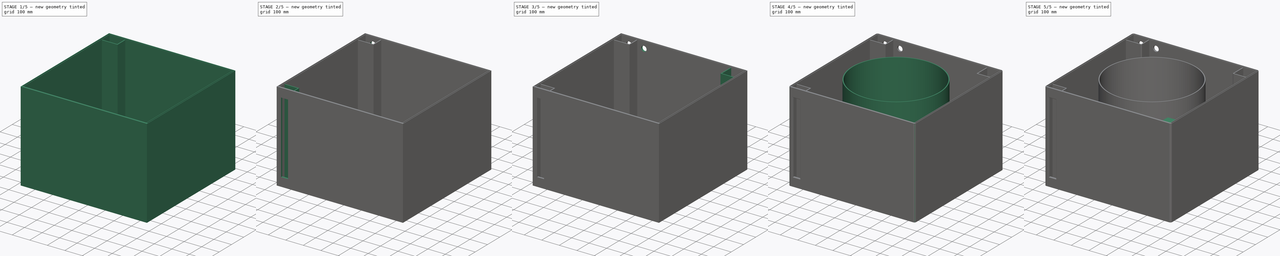
[diagram: build sequence overview — one tinted view per stage of 5, left to right]
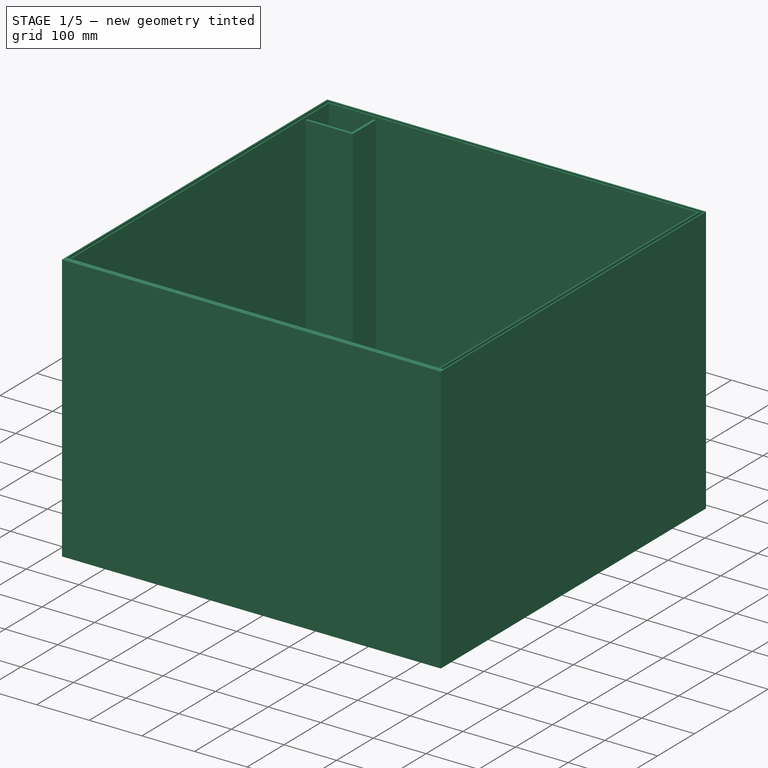
[diagram: stage 1 of 5 — iso view after this stage's code; geometry added in this stage tinted green]
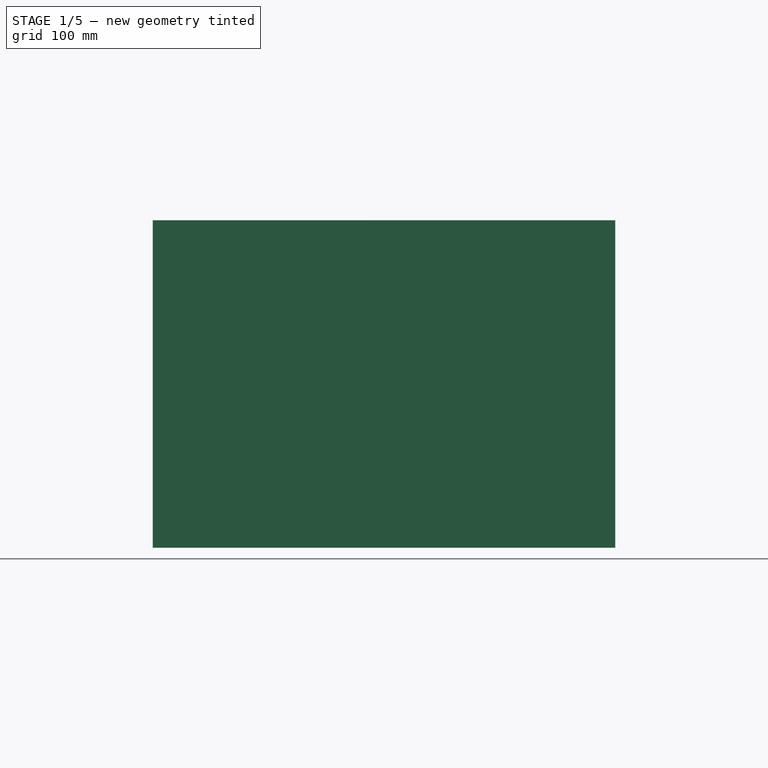
[diagram: stage 1 of 5 — front view after this stage's code; geometry added in this stage tinted green]
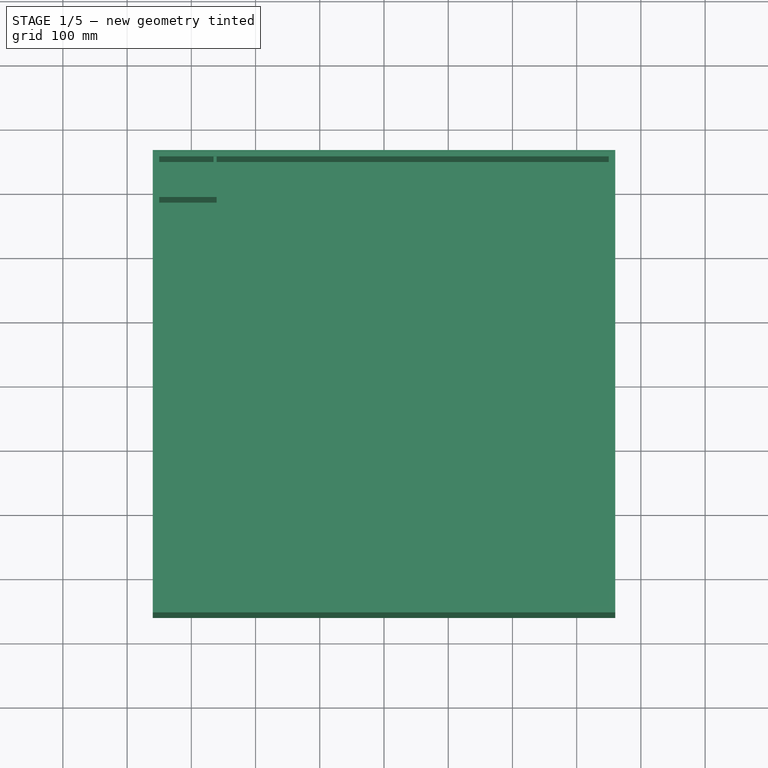
[diagram: stage 1 of 5 — top view after this stage's code; geometry added in this stage tinted green]
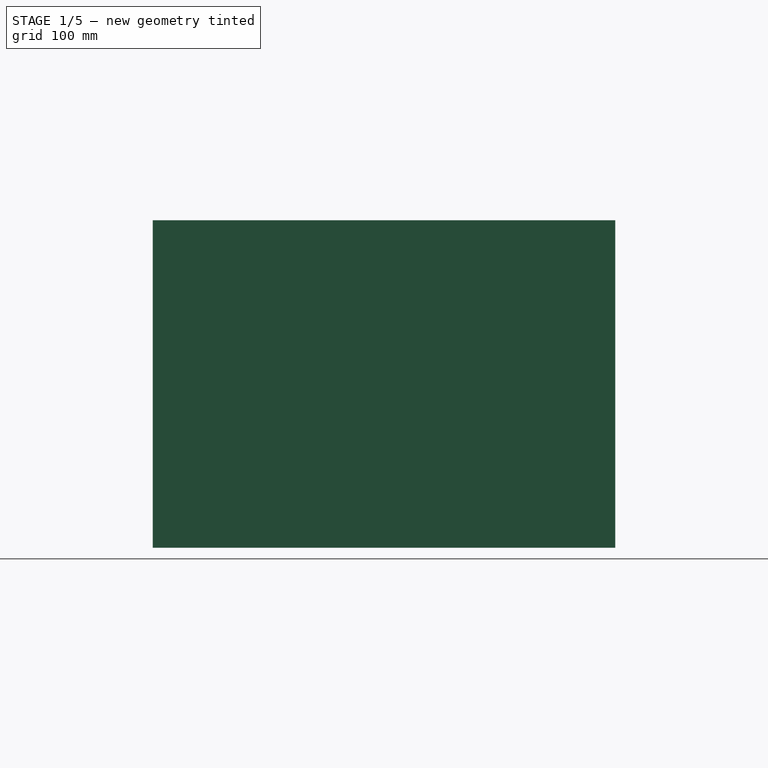
[diagram: stage 1 of 5 — right view after this stage's code; geometry added in this stage tinted green]
FCSTD DOCUMENT  (FreeCAD 0.18R16131 (Git))
Label: Cuve
License: All rights reserved
LicenseURL: http://en.wikipedia.org/wiki/All_rights_reserved
objects: Sketcher::SketchObject×16, PartDesign::Pocket×10, PartDesign::Pad×6, PartDesign::Fillet×6, PartDesign::Body×2, PartDesign::Chamfer×1
note: 57 computed .brp shape members not serialized (recipe doc carries the construction recipe); baked Part::Feature solids carry a one-line shape summary decoded from their .brp

FEATURE [PartDesign::Body] Body
  Origin = -> Origin
FEATURE [Sketcher::SketchObject] Sketch
  MapMode = 5
  Support = -> [XY_Plane001]
  sketch-geometry (6):
    g0: LineSegment StartX=-360 StartY=360 StartZ=0 EndX=360 EndY=360 EndZ=0
    g1: LineSegment StartX=360 StartY=360 StartZ=0 EndX=360 EndY=-360 EndZ=0
    g2: LineSegment StartX=360 StartY=-360 StartZ=0 EndX=-360 EndY=-360 EndZ=0
    g3: LineSegment StartX=-360 StartY=-360 StartZ=0 EndX=-360 EndY=360 EndZ=0
    g4: LineSegment [constr] StartX=-360 StartY=360 StartZ=0 EndX=360 EndY=-360 EndZ=0
    g5: LineSegment [constr] StartX=360 StartY=360 StartZ=0 EndX=-360 EndY=-360 EndZ=0
  constraints (16):
    c: Coincident(g0,g1)
    c: Coincident(g1,g2)
    c: Coincident(g2,g3)
    c: Coincident(g3,g0)
    c: Horizontal(g0)
    c: Horizontal(g2)
    c: Vertical(g1)
    c: Vertical(g3)
    c: DistanceX(g0,g0) = 720
    c: DistanceY(g1,g1) = 720
    c: PointOnObject(g-1,g4)
    c: Coincident(g4,g0)
    c: Coincident(g4,g1)
    c: Coincident(g5,g2)
    c: Coincident(g5,g0)
    c: PointOnObject(g-1,g5)
FEATURE [PartDesign::Pad] Pad  label="Hauteur/largeur_cuve"
  Length = 510
  Length2 = 100
  Profile = -> Sketch
  Type = 0
FEATURE [Sketcher::SketchObject] Sketch001
  ExternalGeometry = -> [Pad]
  MapMode = 5
  Placement = pos=(0,0,510) rot=(0,0,1;0rad)
  Support = -> [Pad]
  sketch-geometry (4):
    g0: LineSegment StartX=-350 StartY=350 StartZ=0 EndX=350 EndY=350 EndZ=0
    g1: LineSegment StartX=350 StartY=350 StartZ=0 EndX=350 EndY=-350 EndZ=0
    g2: LineSegment StartX=350 StartY=-350 StartZ=0 EndX=-350 EndY=-350 EndZ=0
    g3: LineSegment StartX=-350 StartY=-350 StartZ=0 EndX=-350 EndY=350 EndZ=0
  constraints (12):
    c: Coincident(g0,g1)
    c: Coincident(g1,g2)
    c: Coincident(g2,g3)
    c: Coincident(g3,g0)
    c: Horizontal(g0)
    c: Horizontal(g2)
    c: Vertical(g1)
    c: Vertical(g3)
    c: DistanceX(g0,g0) = 700
    c: DistanceY(g1,g1) = 700
    c: DistanceY(g0,g-4) = 10
    c: DistanceX(g-4,g0) = 10
FEATURE [PartDesign::Pocket] Pocket  label="Profondeur_cuve"
  BaseFeature = -> Pad
  Length = 500
  Length2 = 100
  Profile = -> Sketch001
  Type = 0
FEATURE [Sketcher::SketchObject] Sketch002
  ExternalGeometry = -> [Pocket]
  MapMode = 5
  Placement = pos=(0,0,510) rot=(0,0,1;0rad)
  Support = -> [Pocket]
  sketch-geometry (12):
    g0: LineSegment StartX=-358 StartY=358 StartZ=0 EndX=-352 EndY=358 EndZ=0
    g1: LineSegment StartX=-352 StartY=358 StartZ=0 EndX=-352 EndY=-350 EndZ=0
    g2: LineSegment StartX=-352 StartY=-350 StartZ=0 EndX=-358 EndY=-350 EndZ=0
    g3: LineSegment StartX=-358 StartY=-350 StartZ=0 EndX=-358 EndY=358 EndZ=0
    g4: LineSegment StartX=-352 StartY=358 StartZ=0 EndX=358 EndY=358 EndZ=0
    g5: LineSegment StartX=358 StartY=358 StartZ=0 EndX=358 EndY=352 EndZ=0
    g6: LineSegment StartX=358 StartY=352 StartZ=0 EndX=-352 EndY=352 EndZ=0
    g7: LineSegment StartX=-352 StartY=352 StartZ=0 EndX=-352 EndY=358 EndZ=0
    g8: LineSegment StartX=352 StartY=352 StartZ=0 EndX=358 EndY=352 EndZ=0
    g9: LineSegment StartX=358 StartY=352 StartZ=0 EndX=358 EndY=-350 EndZ=0
    g10: LineSegment StartX=358 StartY=-350 StartZ=0 EndX=352 EndY=-350 EndZ=0
    g11: LineSegment StartX=352 StartY=-350 StartZ=0 EndX=352 EndY=352 EndZ=0
  constraints (34):
    c: Coincident(g0,g1)
    c: Coincident(g1,g2)
    c: Coincident(g2,g3)
    c: Coincident(g3,g0)
    c: Horizontal(g0)
    c: Horizontal(g2)
    c: Vertical(g1)
    c: Vertical(g3)
    c: DistanceX(g1,g-8) = 2
    c: DistanceX(g2,g2) = 6
    c: DistanceY(g1,g-8) = 0
    c: DistanceY(g0,g-6) = 2
    c: Coincident(g4,g5)
    c: Coincident(g5,g6)
    c: Coincident(g6,g7)
    c: Coincident(g7,g4)
    c: Horizontal(g4)
    c: Horizontal(g6)
    c: Vertical(g5)
    c: Vertical(g7)
    c: Coincident(g4,g0)
    c: DistanceY(g-5,g6) = 2
    c: Coincident(g8,g9)
    c: Coincident(g9,g10)
    c: Coincident(g10,g11)
    c: Coincident(g11,g8)
    c: Horizontal(g8)
    c: Horizontal(g10)
    c: Vertical(g9)
    c: Vertical(g11)
    c: DistanceX(g10,g10) = 6
    c: DistanceX(g9,g-10) = 2
    c: DistanceY(g10,g-9) = 0
    c: Coincident(g5,g8)
FEATURE [PartDesign::Pocket] Pocket001  label="Rainure"
  BaseFeature = -> Pocket
  Length = 10
  Length2 = 100
  Profile = -> Sketch002
  Type = 0
FEATURE [Sketcher::SketchObject] Sketch003
  ExternalGeometry = -> [Pocket001]
  MapMode = 5
  Placement = pos=(0,0,10) rot=(0,0,1;0rad)
  Support = -> [Pocket001]
  sketch-geometry (4):
    g0: LineSegment StartX=-350 StartY=350 StartZ=0 EndX=-260.5 EndY=350 EndZ=0
    g1: LineSegment StartX=-260.5 StartY=350 StartZ=0 EndX=-260.5 EndY=286.8 EndZ=0
    g2: LineSegment StartX=-260.5 StartY=286.8 StartZ=0 EndX=-350 EndY=286.8 EndZ=0
    g3: LineSegment StartX=-350 StartY=286.8 StartZ=0 EndX=-350 EndY=350 EndZ=0
  constraints (11):
    c: Coincident(g0,g1)
    c: Coincident(g1,g2)
    c: Coincident(g2,g3)
    c: Coincident(g3,g0)
    c: Horizontal(g0)
    c: Horizontal(g2)
    c: Vertical(g1)
    c: Vertical(g3)
    c: Coincident(g0,g-4)
    c: DistanceX(g0,g0) = 89.5
    c: DistanceY(g1,g1) = 63.2
FEATURE [PartDesign::Pad] Pad001
  BaseFeature = -> Pocket001
  Length = 495
  Length2 = 100
  Profile = -> Sketch003
  Type = 0
FEATURE [Sketcher::SketchObject] Sketch004
  ExternalGeometry = -> [Pad001]
  MapMode = 5
  Placement = pos=(0,0,505) rot=(0,0,1;0rad)
  Support = -> [Pad001]
  sketch-geometry (4):
    g0: LineSegment StartX=-350 StartY=350 StartZ=0 EndX=-265.5 EndY=350 EndZ=0
    g1: LineSegment StartX=-265.5 StartY=350 StartZ=0 EndX=-265.5 EndY=291.8 EndZ=0
    g2: LineSegment StartX=-265.5 StartY=291.8 StartZ=0 EndX=-350 EndY=291.8 EndZ=0
    g3: LineSegment StartX=-350 StartY=291.8 StartZ=0 EndX=-350 EndY=350 EndZ=0
  constraints (12):
    c: Coincident(g0,g1)
    c: Coincident(g1,g2)
    c: Coincident(g2,g3)
    c: Coincident(g3,g0)
    c: Horizontal(g0)
    c: Horizontal(g2)
    c: Vertical(g1)
    c: Vertical(g3)
    c: Coincident(g0,g-4)
    c: DistanceX(g1,g-6) = 5
    c: DistanceY(g-6,g-6) = 0
    c: DistanceY(g-6,g1) = 5
FEATURE [PartDesign::Pocket] Pocket002
  BaseFeature = -> Pad001
  Length = 495
  Length2 = 100
  Profile = -> Sketch004
  Type = 0
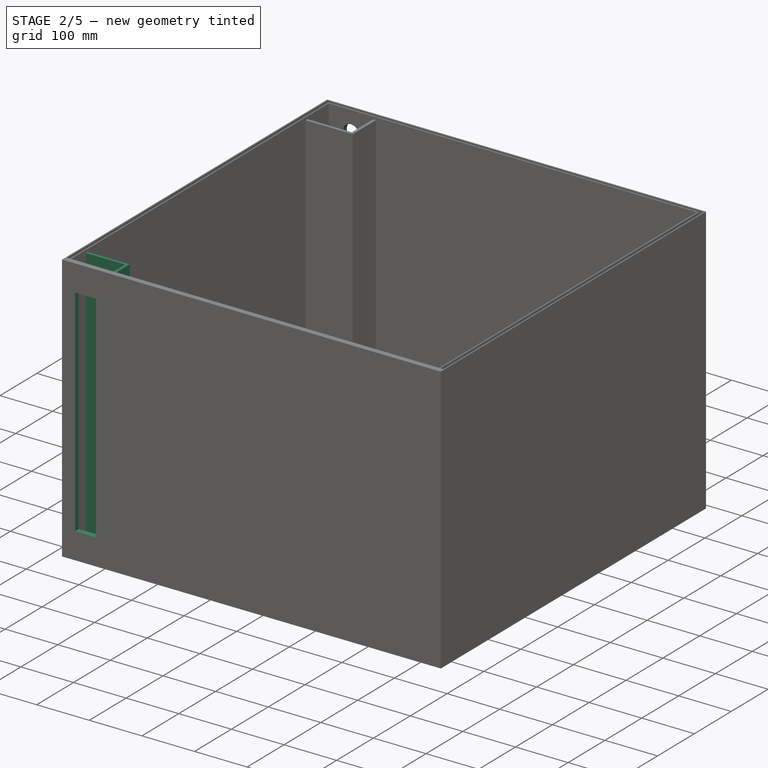
[diagram: stage 2 of 5 — iso view after this stage's code; geometry added in this stage tinted green]
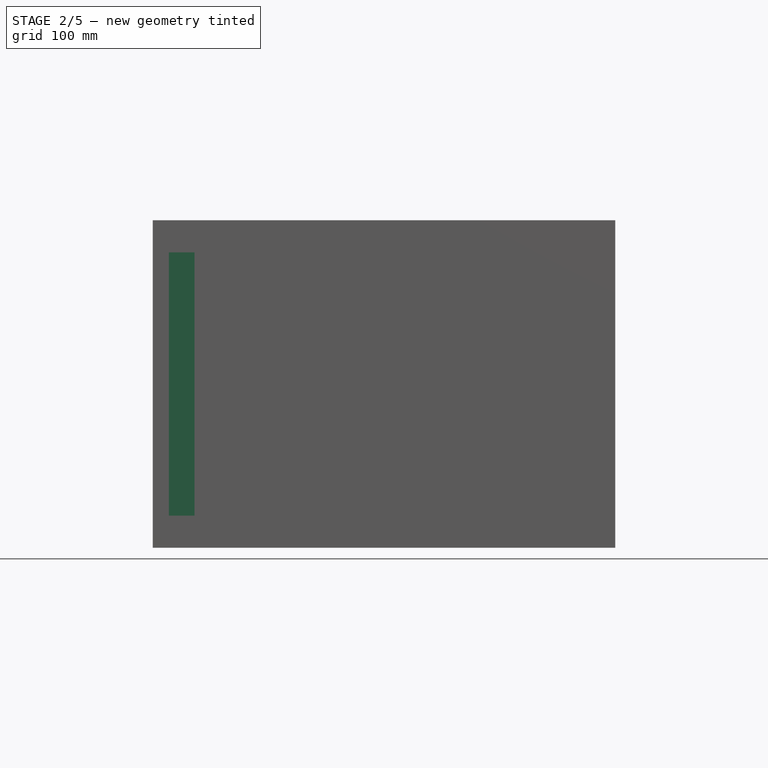
[diagram: stage 2 of 5 — front view after this stage's code; geometry added in this stage tinted green]
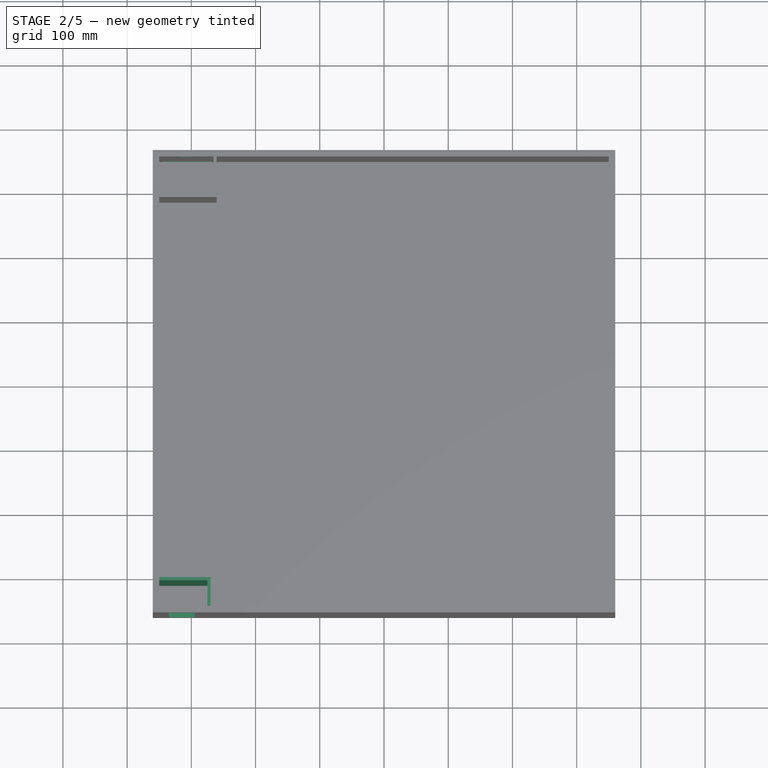
[diagram: stage 2 of 5 — top view after this stage's code; geometry added in this stage tinted green]
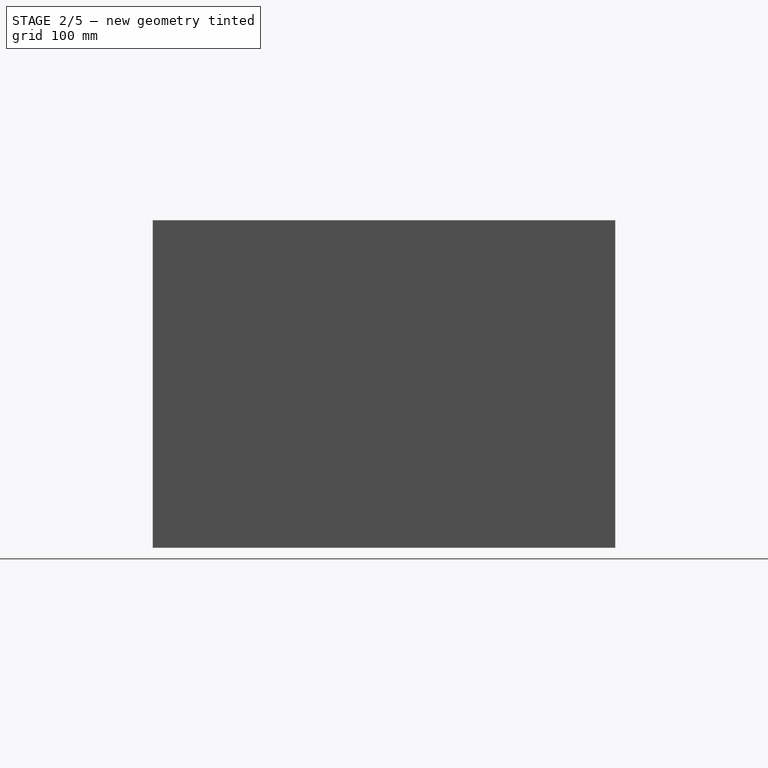
[diagram: stage 2 of 5 — right view after this stage's code; geometry added in this stage tinted green]
FEATURE [Sketcher::SketchObject] Sketch005
  ExternalGeometry = -> [Pocket002]
  MapMode = 5
  Placement = pos=(0,360,0) rot=(0,0.707107,0.707107;3.14159rad)
  Support = -> [Pocket002]
  sketch-geometry (9):
    g0: LineSegment StartX=345 StartY=20 StartZ=0 EndX=270.5 EndY=20 EndZ=0
    g1: LineSegment StartX=270.5 StartY=20 StartZ=0 EndX=270.5 EndY=59.1 EndZ=0
    g2: LineSegment StartX=270.5 StartY=59.1 StartZ=0 EndX=345 EndY=59.1 EndZ=0
    g3: LineSegment StartX=345 StartY=59.1 StartZ=0 EndX=345 EndY=20 EndZ=0
    g4: Ellipse CenterX=307.75 CenterY=470.086 CenterZ=0 NormalX=0 NormalY=0 NormalZ=1 MajorRadius=15 MinorRadius=14.9977 AngleXU=0
    g5: LineSegment [constr] StartX=322.75 StartY=470.086 StartZ=0 EndX=292.75 EndY=470.086 EndZ=0
    g6: LineSegment [constr] StartX=307.75 StartY=485.084 StartZ=0 EndX=307.75 EndY=455.089 EndZ=0
    g7: GeomPoint X=308.014 Y=470.086 Z=0
    g8: GeomPoint X=307.486 Y=470.086 Z=0
  constraints (16):
    c: Coincident(g0,g1)
    c: Coincident(g1,g2)
    c: Coincident(g2,g3)
    c: Coincident(g3,g0)
    c: Horizontal(g0)
    c: Horizontal(g2)
    c: Vertical(g1)
    c: Vertical(g3)
    c: DistanceX(g0,g-4) = 15
    c: DistanceY(g-4,g0) = 20
    c: DistanceY(g1,g1) = 39.1
    c: DistanceX(g2,g2) = 74.5
    c: InternalAlignment(g5-g8 -> g4) x4
    c: Parallel(g5,g2)
    c: DistanceX(g4,g-3) = 52.25
    c: DistanceX(g5,g5) = 30
FEATURE [PartDesign::Pocket] Pocket003
  BaseFeature = -> Pocket002
  Length = 10
  Length2 = 100
  Profile = -> Sketch005
  Type = 0
FEATURE [Sketcher::SketchObject] Sketch006
  ExternalGeometry = -> [Pocket003]
  MapMode = 5
  Placement = pos=(0,0,10) rot=(0,0,1;0rad)
  Support = -> [Pocket003]
  sketch-geometry (4):
    g0: LineSegment StartX=-350 StartY=-305 StartZ=0 EndX=-270 EndY=-305 EndZ=0
    g1: LineSegment StartX=-270 StartY=-305 StartZ=0 EndX=-270 EndY=-350 EndZ=0
    g2: LineSegment StartX=-270 StartY=-350 StartZ=0 EndX=-350 EndY=-350 EndZ=0
    g3: LineSegment StartX=-350 StartY=-350 StartZ=0 EndX=-350 EndY=-305 EndZ=0
  constraints (11):
    c: Coincident(g0,g1)
    c: Coincident(g1,g2)
    c: Coincident(g2,g3)
    c: Coincident(g3,g0)
    c: Horizontal(g0)
    c: Horizontal(g2)
    c: Vertical(g1)
    c: Vertical(g3)
    c: DistanceX(g0,g0) = 80
    c: DistanceY(g1,g1) = 45
    c: Coincident(g2,g-3)
FEATURE [PartDesign::Pad] Pad002  label="Jauge"
  BaseFeature = -> Pocket003
  Length = 495
  Length2 = 100
  Profile = -> Sketch006
  Type = 0
FEATURE [Sketcher::SketchObject] Sketch007
  ExternalGeometry = -> [Pad002]
  MapMode = 5
  Placement = pos=(0,0,505) rot=(0,0,1;0rad)
  Support = -> [Pad002]
  sketch-geometry (4):
    g0: LineSegment StartX=-350 StartY=-310 StartZ=0 EndX=-275 EndY=-310 EndZ=0
    g1: LineSegment StartX=-275 StartY=-310 StartZ=0 EndX=-275 EndY=-350 EndZ=0
    g2: LineSegment StartX=-275 StartY=-350 StartZ=0 EndX=-350 EndY=-350 EndZ=0
    g3: LineSegment StartX=-350 StartY=-350 StartZ=0 EndX=-350 EndY=-310 EndZ=0
  constraints (11):
    c: Coincident(g0,g1)
    c: Coincident(g1,g2)
    c: Coincident(g2,g3)
    c: Coincident(g3,g0)
    c: Horizontal(g0)
    c: Horizontal(g2)
    c: Vertical(g1)
    c: Vertical(g3)
    c: Coincident(g2,g-4)
    c: DistanceX(g0,g-6) = 5
    c: DistanceY(g0,g-6) = 5
FEATURE [PartDesign::Pocket] Pocket004
  BaseFeature = -> Pad002
  Length = 495
  Length2 = 100
  Profile = -> Sketch007
  Type = 0
FEATURE [Sketcher::SketchObject] Sketch008
  ExternalGeometry = -> [Pocket004]
  MapMode = 5
  Placement = pos=(0,-360,0) rot=(1,0,0;1.5708rad)
  Support = -> [Pocket004]
  sketch-geometry (4):
    g0: LineSegment StartX=-335 StartY=460 StartZ=0 EndX=-295 EndY=460 EndZ=0
    g1: LineSegment StartX=-295 StartY=460 StartZ=0 EndX=-295 EndY=50 EndZ=0
    g2: LineSegment StartX=-295 StartY=50 StartZ=0 EndX=-335 EndY=50 EndZ=0
    g3: LineSegment StartX=-335 StartY=50 StartZ=0 EndX=-335 EndY=460 EndZ=0
  constraints (12):
    c: Coincident(g0,g1)
    c: Coincident(g1,g2)
    c: Coincident(g2,g3)
    c: Coincident(g3,g0)
    c: Horizontal(g0)
    c: Horizontal(g2)
    c: Vertical(g1)
    c: Vertical(g3)
    c: DistanceX(g-3,g0) = 25
    c: DistanceX(g0,g0) = 40
    c: DistanceY(g0,g-3) = 50
    c: DistanceY(g-3,g2) = 50
FEATURE [PartDesign::Pocket] Pocket005
  BaseFeature = -> Pocket004
  Length = 10
  Length2 = 100
  Profile = -> Sketch008
  Type = 0
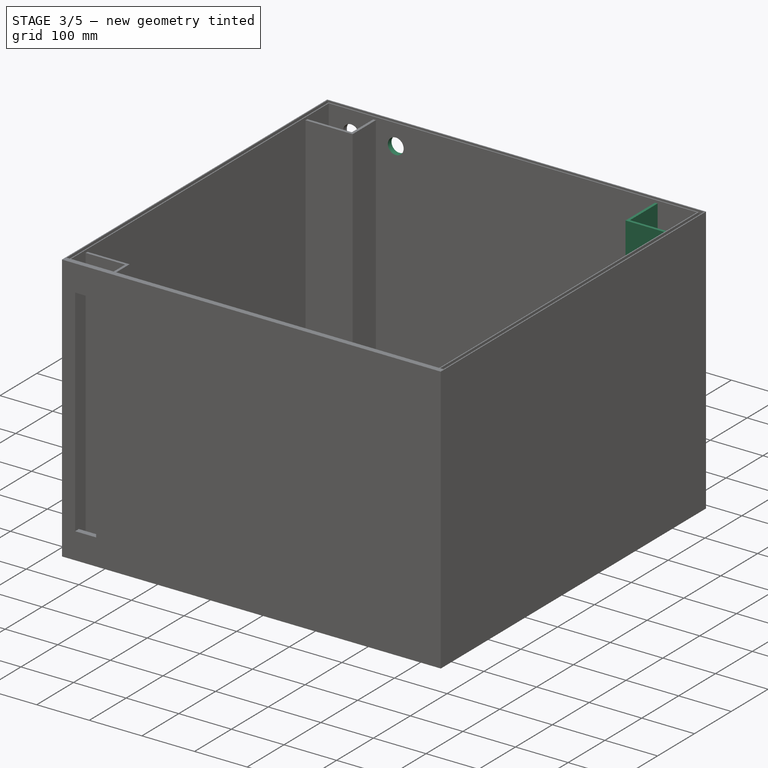
[diagram: stage 3 of 5 — iso view after this stage's code; geometry added in this stage tinted green]
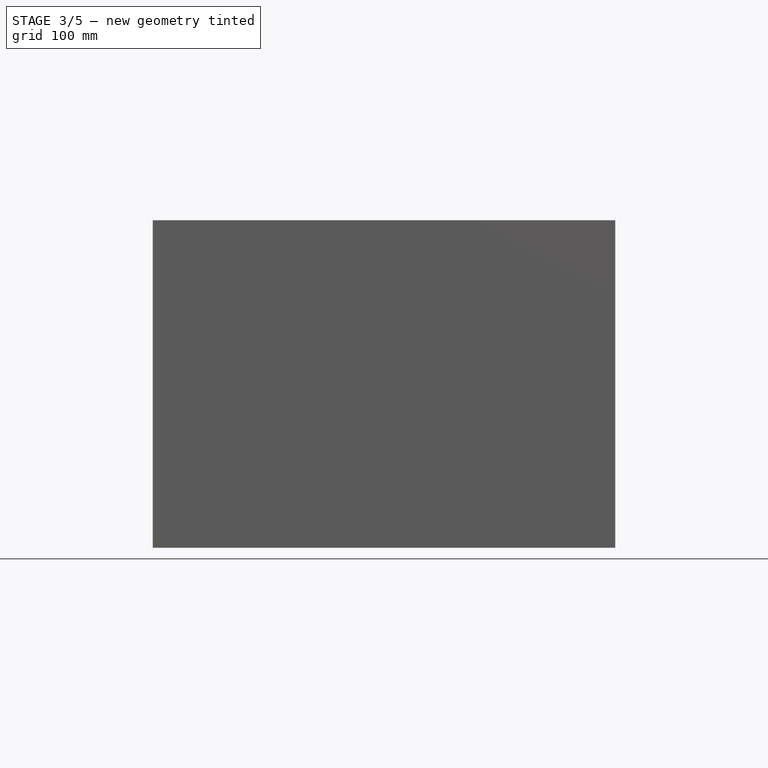
[diagram: stage 3 of 5 — front view after this stage's code; geometry added in this stage tinted green]
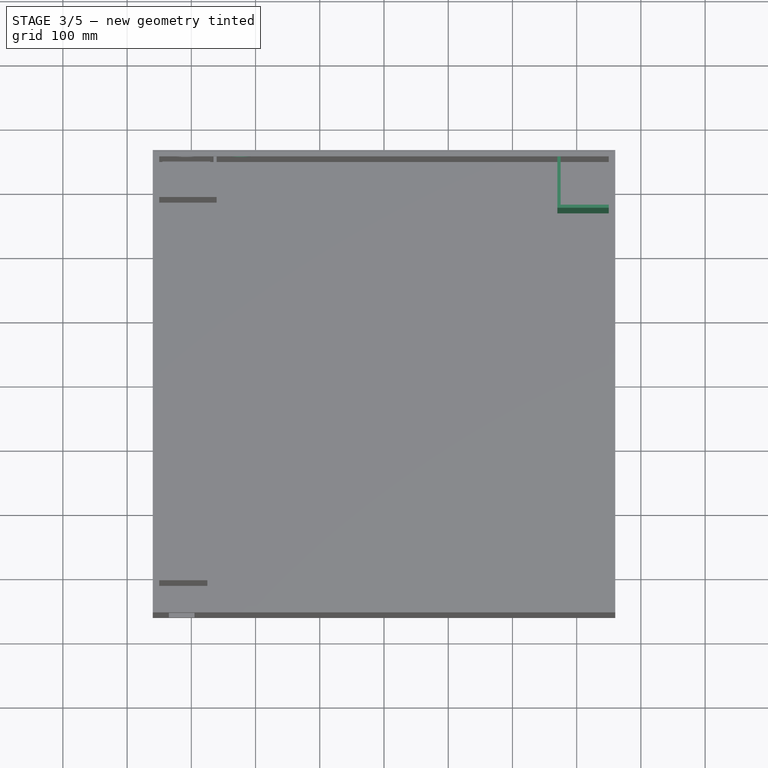
[diagram: stage 3 of 5 — top view after this stage's code; geometry added in this stage tinted green]
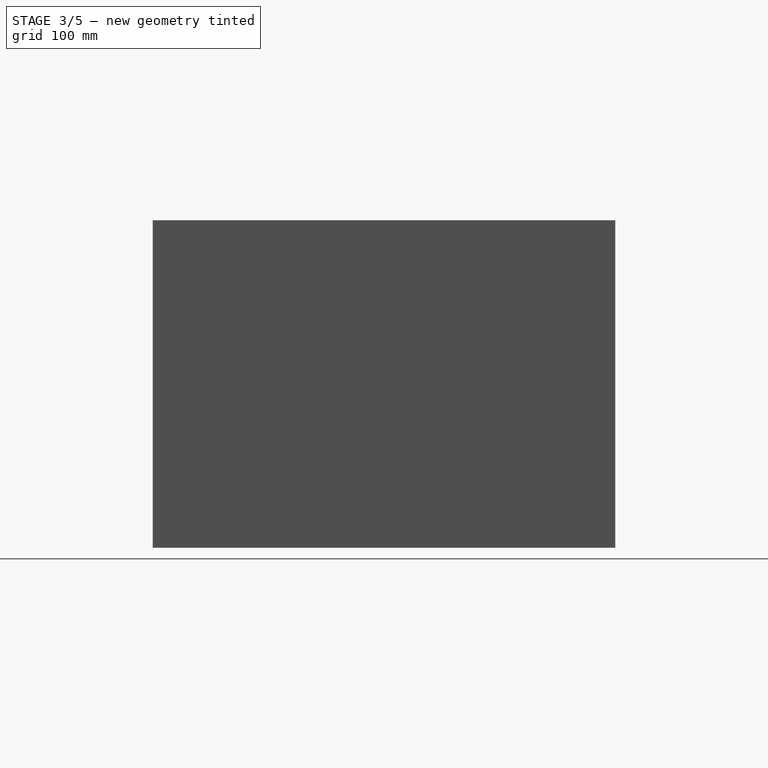
[diagram: stage 3 of 5 — right view after this stage's code; geometry added in this stage tinted green]
FEATURE [Sketcher::SketchObject] Sketch009
  ExternalGeometry = -> [Pocket005]
  MapMode = 5
  Placement = pos=(0,0,10) rot=(0,0,1;0rad)
  Support = -> [Pocket005]
  sketch-geometry (4):
    g0: LineSegment StartX=270 StartY=350 StartZ=0 EndX=350 EndY=350 EndZ=0
    g1: LineSegment StartX=350 StartY=350 StartZ=0 EndX=350 EndY=270 EndZ=0
    g2: LineSegment StartX=350 StartY=270 StartZ=0 EndX=270 EndY=270 EndZ=0
    g3: LineSegment StartX=270 StartY=270 StartZ=0 EndX=270 EndY=350 EndZ=0
  constraints (11):
    c: Coincident(g0,g1)
    c: Coincident(g1,g2)
    c: Coincident(g2,g3)
    c: Coincident(g3,g0)
    c: Horizontal(g0)
    c: Horizontal(g2)
    c: Vertical(g1)
    c: Vertical(g3)
    c: Coincident(g0,g-4)
    c: DistanceX(g2,g2) = 80
    c: DistanceY(g3,g3) = 80
FEATURE [PartDesign::Pad] Pad003
  BaseFeature = -> Pocket005
  Length = 495
  Length2 = 100
  Profile = -> Sketch009
  Type = 0
FEATURE [Sketcher::SketchObject] Sketch010
  ExternalGeometry = -> [Pad003]
  MapMode = 5
  Placement = pos=(0,0,505) rot=(0,0,1;0rad)
  Support = -> [Pad003]
  sketch-geometry (4):
    g0: LineSegment StartX=275 StartY=350 StartZ=0 EndX=350 EndY=350 EndZ=0
    g1: LineSegment StartX=350 StartY=350 StartZ=0 EndX=350 EndY=275 EndZ=0
    g2: LineSegment StartX=350 StartY=275 StartZ=0 EndX=275 EndY=275 EndZ=0
    g3: LineSegment StartX=275 StartY=275 StartZ=0 EndX=275 EndY=350 EndZ=0
  constraints (11):
    c: Coincident(g0,g1)
    c: Coincident(g1,g2)
    c: Coincident(g2,g3)
    c: Coincident(g3,g0)
    c: Horizontal(g0)
    c: Horizontal(g2)
    c: Vertical(g1)
    c: Vertical(g3)
    c: Coincident(g0,g-4)
    c: DistanceX(g-3,g0) = 5
    c: DistanceY(g-4,g1) = 5
FEATURE [PartDesign::Pocket] Pocket006
  BaseFeature = -> Pad003
  Length = 495
  Length2 = 100
  Profile = -> Sketch010
  Type = 0
FEATURE [Sketcher::SketchObject] Sketch011
  ExternalGeometry = -> [Pocket006]
  MapMode = 5
  Placement = pos=(-270,0,0) rot=(0.57735,0.57735,0.57735;2.0944rad)
  Support = -> [Pocket006]
  sketch-geometry (8):
    g0: LineSegment StartX=-320 StartY=485 StartZ=0 EndX=-335 EndY=485 EndZ=0
    g1: LineSegment StartX=-335 StartY=485 StartZ=0 EndX=-335 EndY=385 EndZ=0
    g2: LineSegment StartX=-335 StartY=385 StartZ=0 EndX=-320 EndY=385 EndZ=0
    g3: LineSegment StartX=-320 StartY=385 StartZ=0 EndX=-320 EndY=485 EndZ=0
    g4: LineSegment StartX=-320 StartY=130 StartZ=0 EndX=-335 EndY=130 EndZ=0
    g5: LineSegment StartX=-335 StartY=130 StartZ=0 EndX=-335 EndY=30 EndZ=0
    g6: LineSegment StartX=-335 StartY=30 StartZ=0 EndX=-320 EndY=30 EndZ=0
    g7: LineSegment StartX=-320 StartY=30 StartZ=0 EndX=-320 EndY=130 EndZ=0
  constraints (24):
    c: Coincident(g0,g1)
    c: Coincident(g1,g2)
    c: Coincident(g2,g3)
    c: Coincident(g3,g0)
    c: Horizontal(g0)
    c: Horizontal(g2)
    c: Vertical(g1)
    c: Vertical(g3)
    c: Coincident(g4,g5)
    c: Coincident(g5,g6)
    c: Coincident(g6,g7)
    c: Coincident(g7,g4)
    c: Horizontal(g4)
    c: Horizontal(g6)
    c: Vertical(g5)
    c: Vertical(g7)
    c: DistanceY(g0,g-4) = 20
    c: DistanceX(g0,g-4) = 15
    c: DistanceX(g-6,g0) = 15
    c: DistanceY(g3,g3) = 100
    c: DistanceY(g7,g7) = 100
    c: DistanceY(g-5,g6) = 20
    c: DistanceX(g6,g-5) = 15
    c: DistanceX(g-6,g5) = 15
FEATURE [PartDesign::Pocket] Pocket007
  BaseFeature = -> Pocket006
  Length = 5
  Length2 = 100
  Profile = -> Sketch011
  Type = 0
FEATURE [Sketcher::SketchObject] Sketch012
  ExternalGeometry = -> [Pocket007]
  MapMode = 5
  Placement = pos=(270,0,0) rot=(0.57735,-0.57735,-0.57735;2.0944rad)
  Support = -> [Pocket007]
  sketch-geometry (4):
    g0: LineSegment StartX=-320 StartY=130 StartZ=0 EndX=-300 EndY=130 EndZ=0
    g1: LineSegment StartX=-300 StartY=130 StartZ=0 EndX=-300 EndY=30 EndZ=0
    g2: LineSegment StartX=-300 StartY=30 StartZ=0 EndX=-320 EndY=30 EndZ=0
    g3: LineSegment StartX=-320 StartY=30 StartZ=0 EndX=-320 EndY=130 EndZ=0
  constraints (12):
    c: Coincident(g0,g1)
    c: Coincident(g1,g2)
    c: Coincident(g2,g3)
    c: Coincident(g3,g0)
    c: Horizontal(g0)
    c: Horizontal(g2)
    c: Vertical(g1)
    c: Vertical(g3)
    c: DistanceX(g1,g-6) = 30
    c: DistanceX(g-6,g2) = 30
    c: DistanceY(g-6,g1) = 20
    c: DistanceY(g1,g1) = 100
FEATURE [PartDesign::Pocket] Pocket008
  BaseFeature = -> Pocket007
  Length = 5
  Length2 = 100
  Profile = -> Sketch012
  Type = 0
FEATURE [Sketcher::SketchObject] Sketch013
  ExternalGeometry = -> [Pocket008]
  MapMode = 5
  Placement = pos=(0,360,0) rot=(0,0.707107,0.707107;3.14159rad)
  Support = -> [Pocket008]
  sketch-geometry (3):
    g0: Circle CenterX=222.75 CenterY=470.086 CenterZ=0 NormalX=0 NormalY=0 NormalZ=1 AngleXU=0 Radius=14.9977
    g1: LineSegment [constr] StartX=307.75 StartY=485.084 StartZ=0 EndX=307.75 EndY=470.086 EndZ=0
    g2: LineSegment [constr] StartX=222.75 StartY=470.086 StartZ=0 EndX=222.75 EndY=485.084 EndZ=0
  constraints (10):
    c: DistanceY(g0,g-3) = 0
    c: DistanceX(g-4,g-3) = -42.25
    c: DistanceX(g0,g-3) = 85
    c: Coincident(g1,g-3)
    c: PointOnObject(g1,g-3)
    c: Vertical(g1)
    c: Coincident(g2,g0)
    c: PointOnObject(g2,g0)
    c: Vertical(g2)
    c: DistanceY(g1,g2) = 0
FEATURE [PartDesign::Pocket] Pocket009
  BaseFeature = -> Pocket008
  Length = 10
  Length2 = 100
  Profile = -> Sketch013
  Type = 0
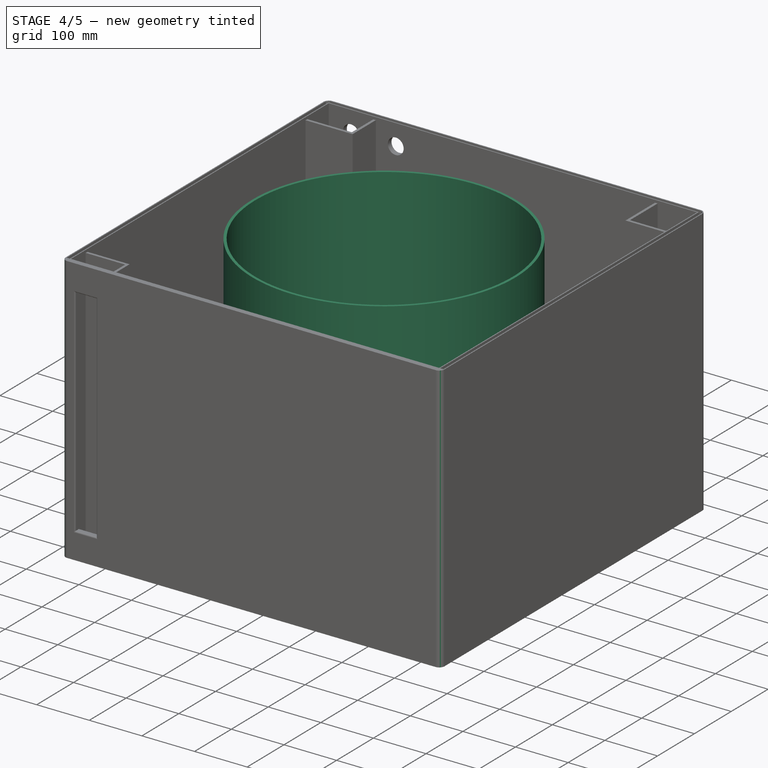
[diagram: stage 4 of 5 — iso view after this stage's code; geometry added in this stage tinted green]
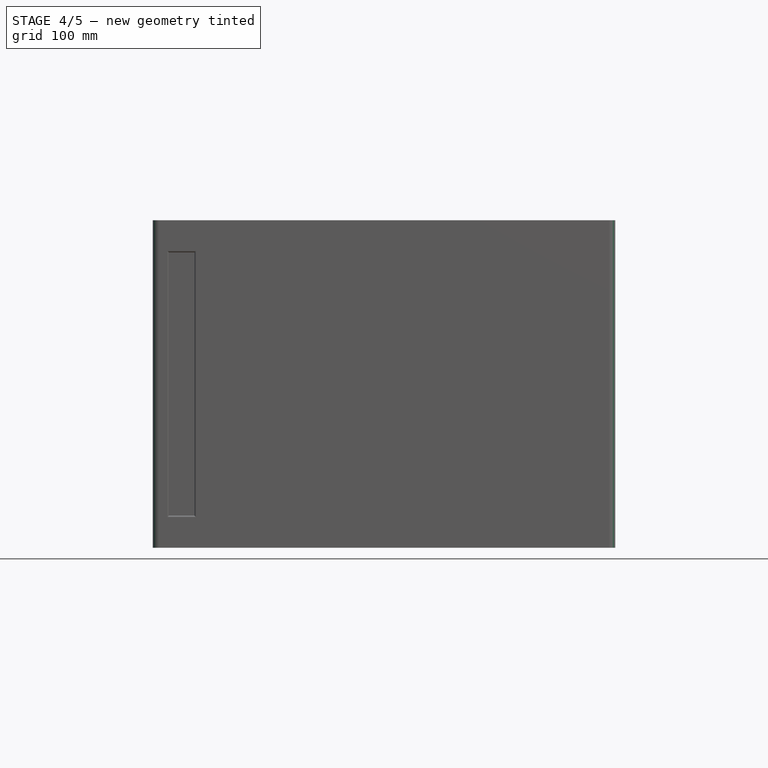
[diagram: stage 4 of 5 — front view after this stage's code; geometry added in this stage tinted green]
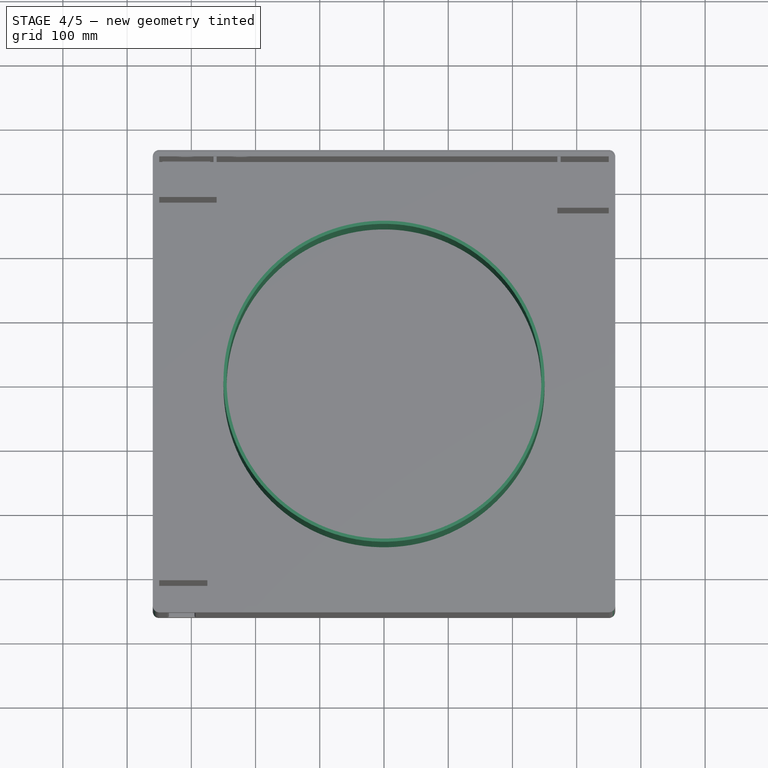
[diagram: stage 4 of 5 — top view after this stage's code; geometry added in this stage tinted green]
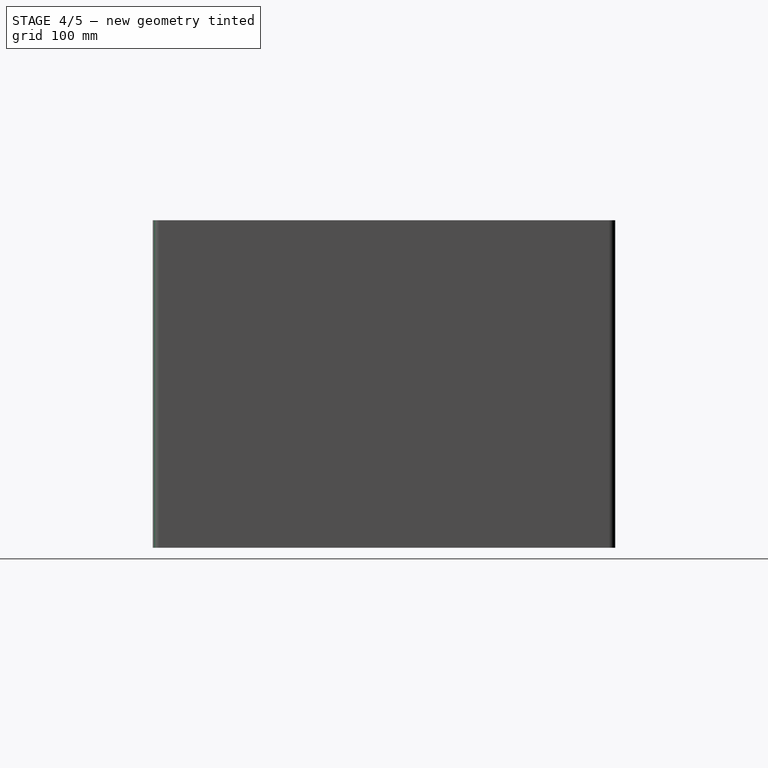
[diagram: stage 4 of 5 — right view after this stage's code; geometry added in this stage tinted green]
FEATURE [Sketcher::SketchObject] Sketch014
  MapMode = 5
  Placement = pos=(0,0,10) rot=(0,0,1;0rad)
  Support = -> [Pocket009]
  sketch-geometry (2):
    g0: Circle CenterX=0 CenterY=0 CenterZ=0 NormalX=0 NormalY=0 NormalZ=1 AngleXU=0 Radius=250
    g1: Circle CenterX=0 CenterY=0 CenterZ=0 NormalX=0 NormalY=0 NormalZ=1 AngleXU=0 Radius=245
  constraints (4):
    c: Coincident(g0,g-1)
    c: Radius(g0) = 250
    c: Coincident(g1,g0)
    c: Radius(g1) = 245
FEATURE [PartDesign::Pad] Pad004
  BaseFeature = -> Pocket009
  Length = 495
  Length2 = 100
  Profile = -> Sketch014
  Type = 0
FEATURE [PartDesign::Fillet] Fillet
  Base = -> Pad004 [Edge11,Edge32,Edge4,Edge1]
  BaseFeature = -> Pad004
  Radius = 10
FEATURE [PartDesign::Chamfer] Chamfer
  Base = -> Fillet [Edge95,Edge101]
  BaseFeature = -> Fillet
  Size = 5
FEATURE [PartDesign::Fillet] Fillet001
  Base = -> Chamfer [Edge72,Edge73,Edge70,Edge71]
  BaseFeature = -> Chamfer
  Radius = 2.5
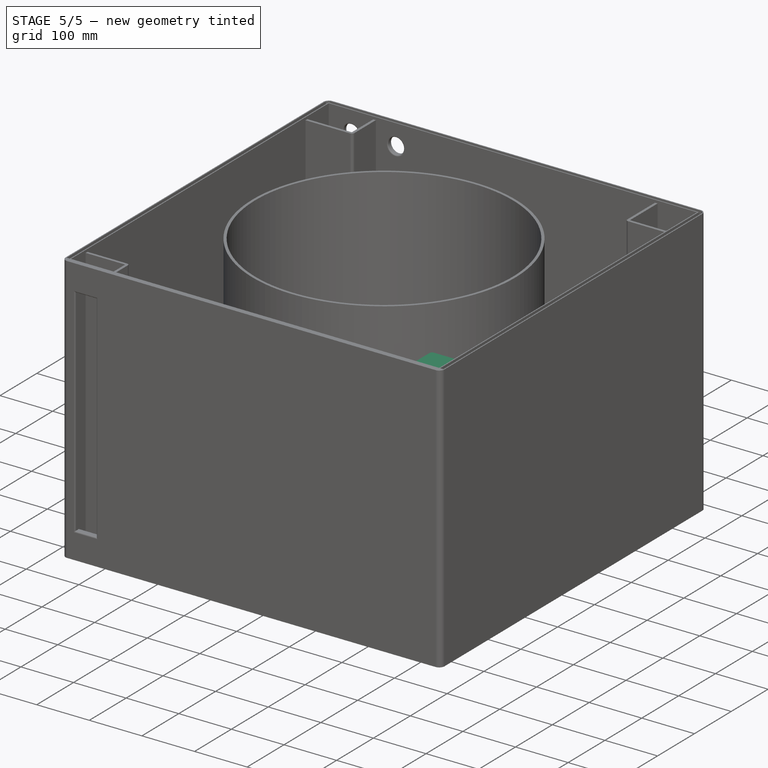
[diagram: stage 5 of 5 — iso view after this stage's code; geometry added in this stage tinted green]
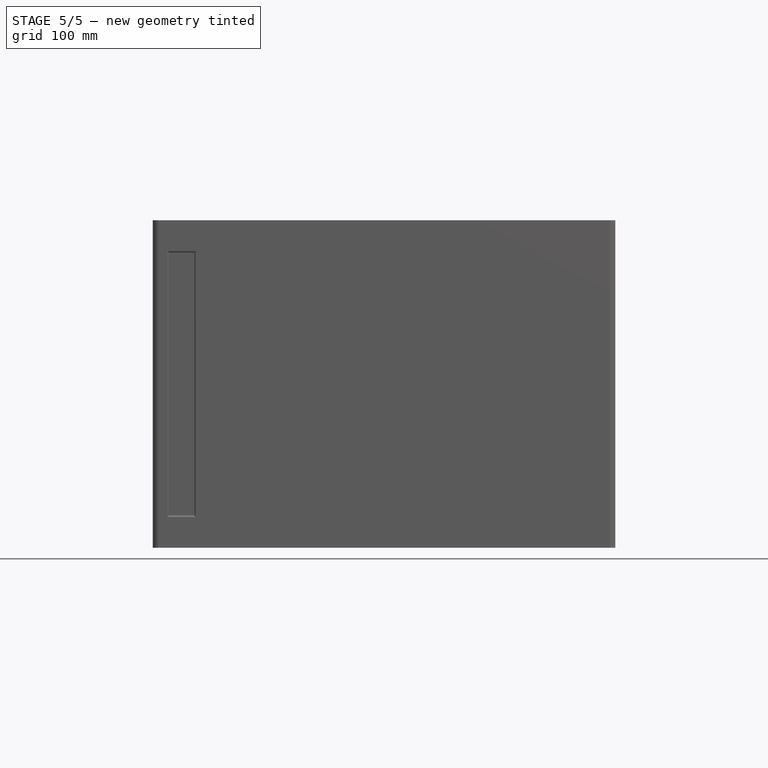
[diagram: stage 5 of 5 — front view after this stage's code; geometry added in this stage tinted green]
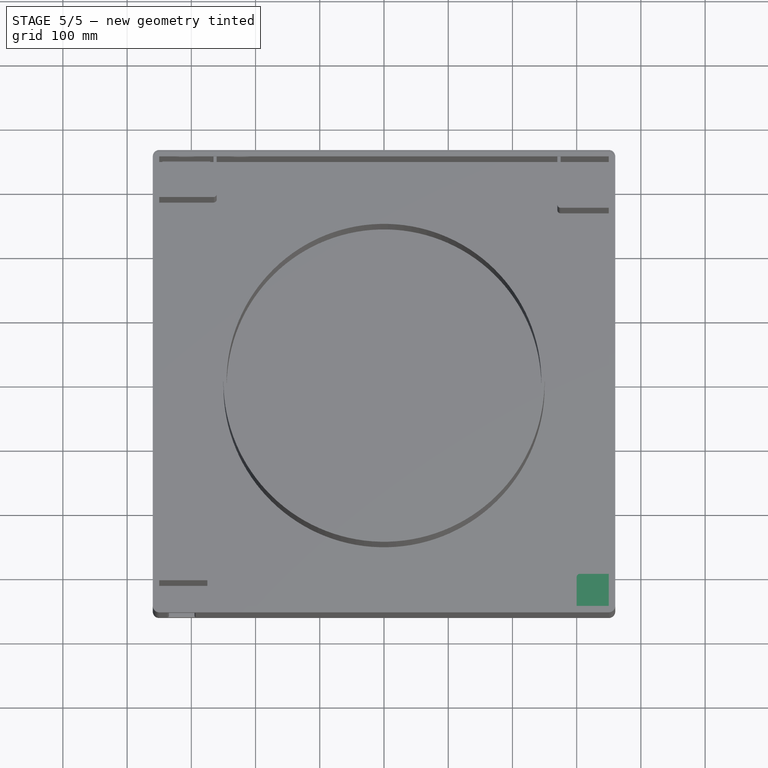
[diagram: stage 5 of 5 — top view after this stage's code; geometry added in this stage tinted green]
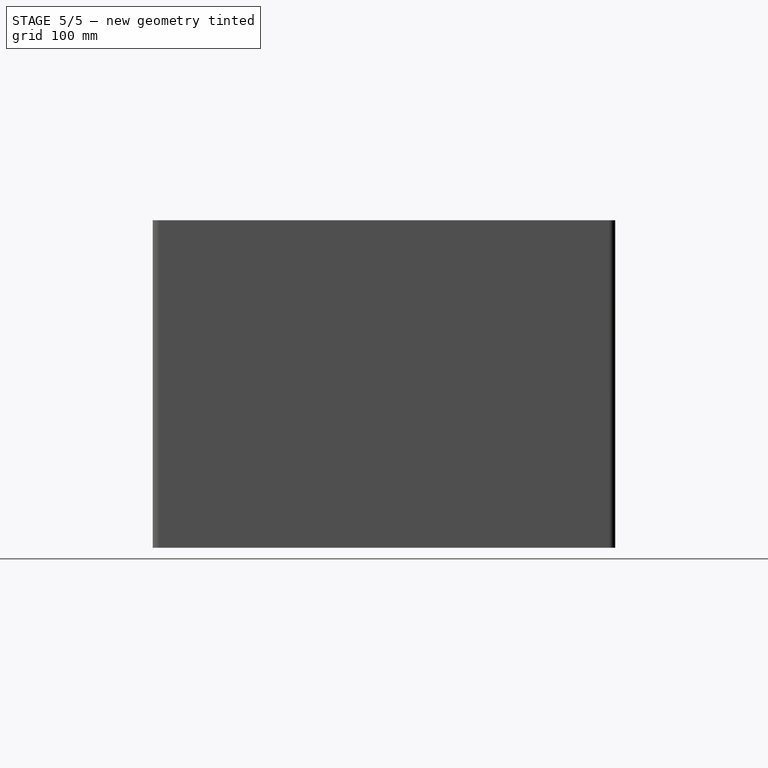
[diagram: stage 5 of 5 — right view after this stage's code; geometry added in this stage tinted green]
FEATURE [Sketcher::SketchObject] Sketch015
  ExternalGeometry = -> [Fillet001]
  MapMode = 5
  Placement = pos=(0,-350,0) rot=(0,0.707107,0.707107;3.14159rad)
  Support = -> [Fillet001]
  sketch-geometry (4):
    g0: LineSegment StartX=-350 StartY=505 StartZ=0 EndX=-300 EndY=505 EndZ=0
    g1: LineSegment StartX=-300 StartY=505 StartZ=0 EndX=-300 EndY=455 EndZ=0
    g2: LineSegment StartX=-300 StartY=455 StartZ=0 EndX=-350 EndY=455 EndZ=0
    g3: LineSegment StartX=-350 StartY=455 StartZ=0 EndX=-350 EndY=505 EndZ=0
  constraints (12):
    c: Coincident(g0,g1)
    c: Coincident(g1,g2)
    c: Coincident(g2,g3)
    c: Coincident(g3,g0)
    c: Horizontal(g0)
    c: Horizontal(g2)
    c: Vertical(g1)
    c: Vertical(g3)
    c: DistanceX(g2,g2) = 50
    c: DistanceY(g1,g1) = 50
    c: DistanceY(g0,g-4) = 5
    c: DistanceX(g-4,g0) = 0
FEATURE [PartDesign::Pad] Pad005
  BaseFeature = -> Fillet001
  Length = 50
  Length2 = 100
  Profile = -> Sketch015
  Type = 0
FEATURE [PartDesign::Fillet] Fillet002
  Base = -> Pad005 [Edge104,Edge134,Edge63,Edge64]
  BaseFeature = -> Pad005
  Radius = 2
FEATURE [PartDesign::Fillet] Fillet003
  Base = -> Fillet002 [Edge208,Edge214,Edge213,Edge211,Edge157,Edge158,Edge156,Edge159]
  BaseFeature = -> Fillet002
  Radius = 2
FEATURE [PartDesign::Fillet] Fillet004
  Base = -> Fillet003 [Edge75,Edge74,Edge73,Edge166,Edge72,Edge71,Edge68,Edge69,Edge158,Edge70,Edge168,Edge164,Edge160,Edge156,Edge154,Edge162]
  BaseFeature = -> Fillet003
  Radius = 2
FEATURE [PartDesign::Fillet] Fillet005
  Base = -> Fillet004 [Edge69,Edge82,Edge5,Edge141]
  BaseFeature = -> Fillet004
  Radius = 5
FEATURE [PartDesign::Body] Body001  label="Cuve"
  Group = -> [Sketch,Pad,Sketch001,Pocket,Sketch002,Pocket001,Sketch003,Pad001,Sketch004,Pocket002,Sketch005,Pocket003,Sketch006,Pad002,Sketch007,Pocket004,Sketch008,Pocket005,Sketch009,Pad003,Sketch010,Pocket006,Sketch011,Pocket007,Sketch012,Pocket008,Sketch013,Pocket009,Sketch014,Pad004,Fillet,Chamfer,Fillet001,Sketch015,Pad005,Fillet002,Fillet003,Fillet004,Fillet005]
  Origin = -> Origin001
  Tip = -> Fillet005
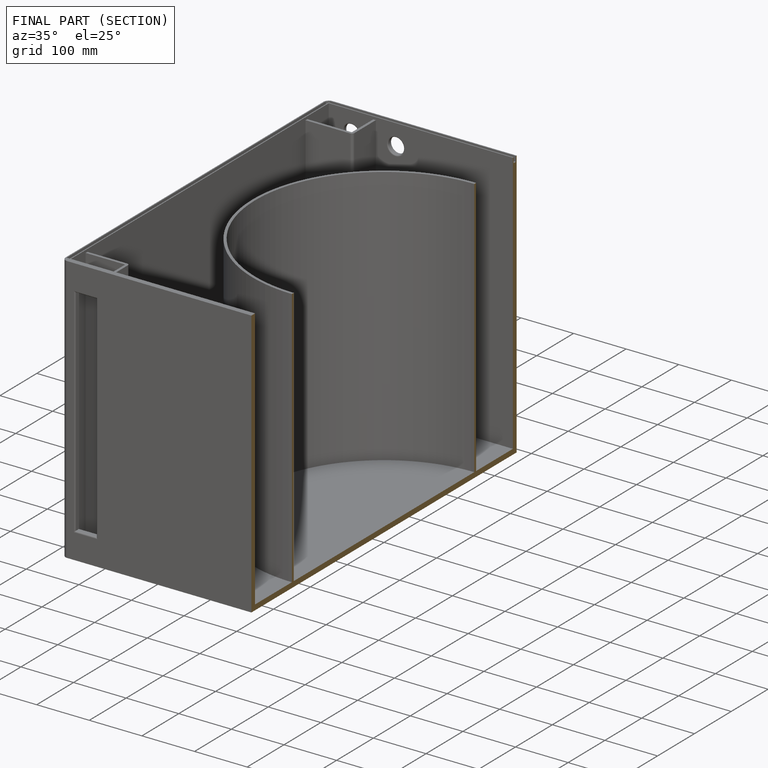
[diagram: finished part — half-section view (interior)]
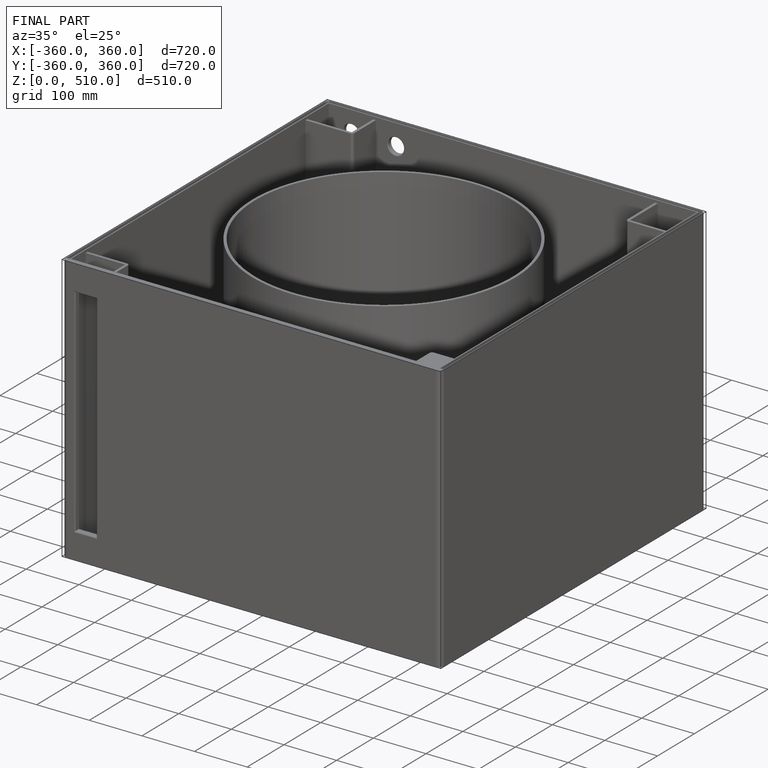
[diagram: finished part — iso view with bounding-box wireframe]
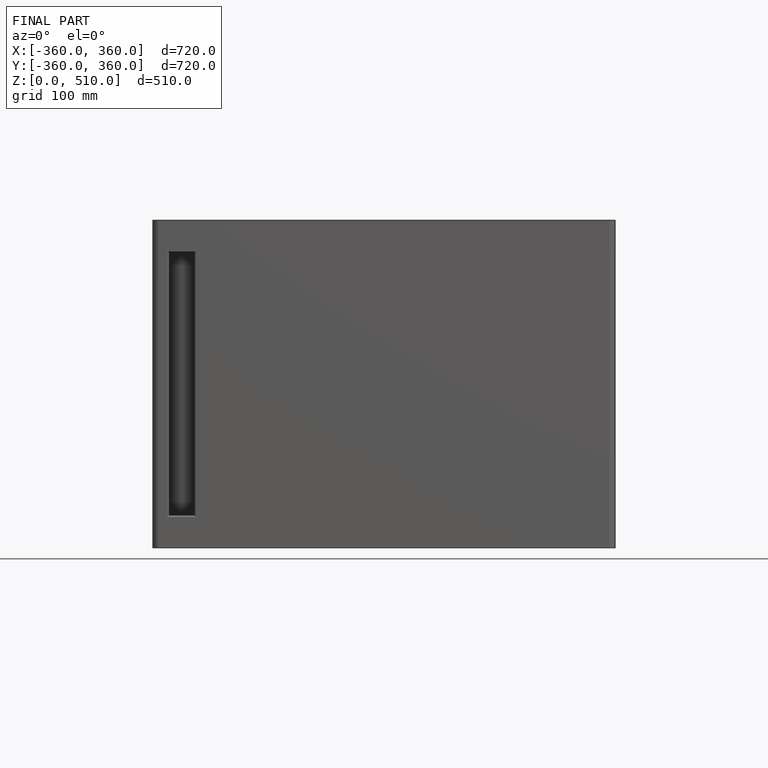
[diagram: finished part — front view with bounding-box wireframe]
